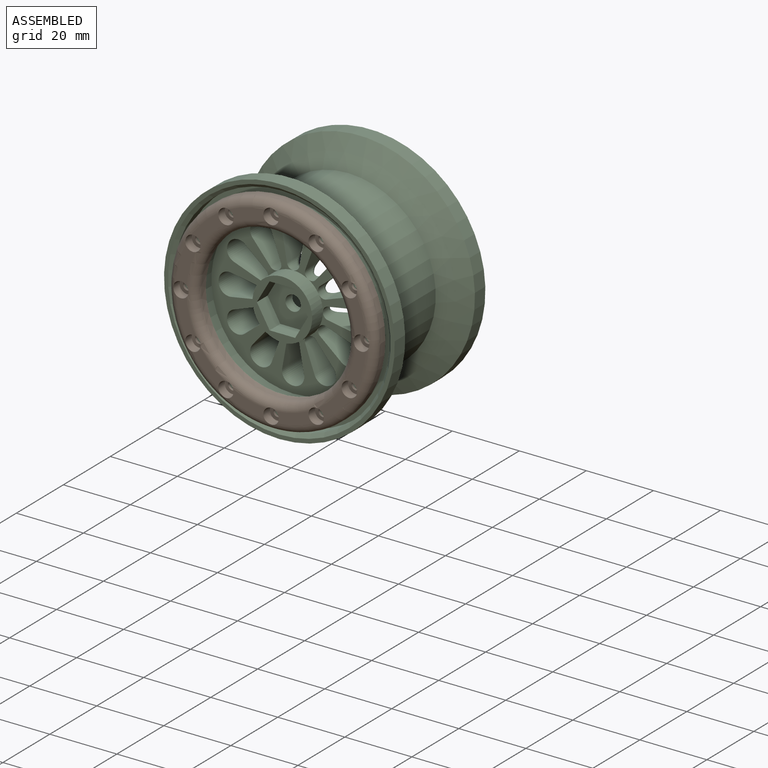
[diagram: assembled view]
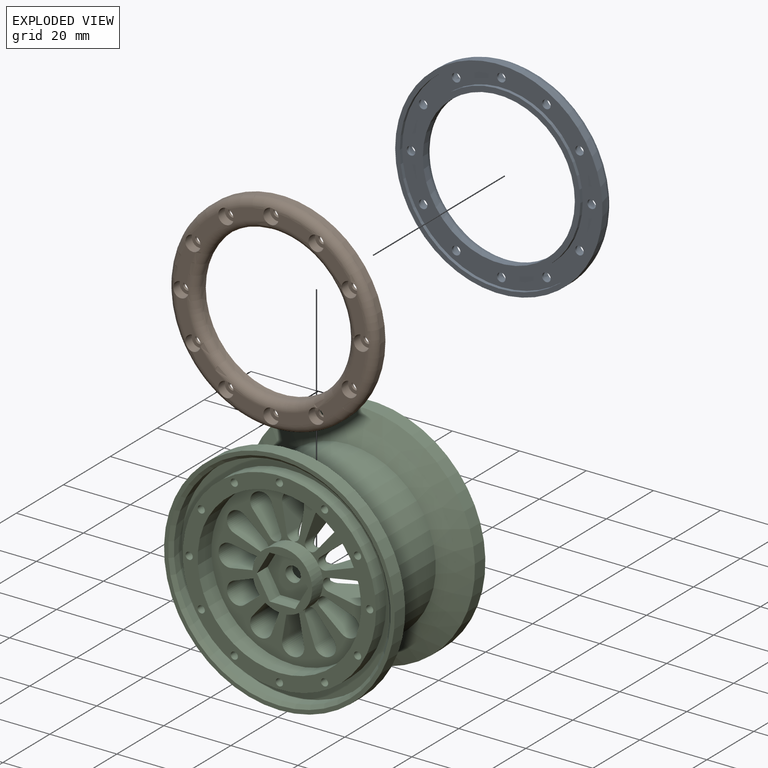
[diagram: exploded view]
GUIDED TOUR — MATED ASSEMBLY (Onshape document 4cdb00ff0a4b6b4df8838303, AutoMate assembly 4cdb00ff0a4b6b4df8838303_9c6cea772b66b6b0c217ccb2_10d780cee278beb6299b6385_default)

This assembly has 3 components, labeled P0..P2 below (a component is one placed occurrence of a part; the same part can appear more than once), held together by 6 mates. A mate is a constraint between two components; its type names the relative motion it leaves free:
  CYLINDRICAL — leaves both rotation about and translation along the listed axis free,
  PLANAR — leaves sliding in the plane through the listed point (normal = the listed direction) and rotation about that normal free.
Axis/direction vectors are unit vectors and 'through' points are millimeter coordinates, both in the assembly's world frame.

MATES
  1. CYLINDRICAL "Cylindrical 3": P0 <-> P2, axis (0.000, -1.000, 0.000) through (0.00, 19.30, 0.00) mm
  2. PLANAR "Planar 2": P0 <-> P2, direction (0.000, -1.000, 0.000) through (0.00, 19.30, 0.00) mm
  3. CYLINDRICAL "Cylindrical 1": P1 <-> P2, axis (0.000, 1.000, 0.000) through (0.00, -19.30, 0.00) mm
  4. CYLINDRICAL "Cylindrical 4": P0 <-> P2, axis (0.000, 1.000, 0.000) through (-13.46, 19.69, 23.32) mm
  5. CYLINDRICAL "Cylindrical 2": P1 <-> P2, axis (0.000, -1.000, 0.000) through (0.00, -19.69, 26.92) mm
  6. PLANAR "Planar 1": P1 <-> P2, direction (0.000, 1.000, 0.000) through (13.46, -19.30, -23.32) mm

ASSEMBLY ORDER
  1. P1 — the base component [order verified]
  2. P2 [order verified]
  3. P0 [order verified]
Order-tag legend:
  [order verified] — this step's position reverses a verified removal order: the component was checked to insert without passing through the ones already placed.

Of the 3 components, 0 carry the full construction recipe — the FeatureScript program that regenerates the part's solid from scratch; the rest are supplied as boundary geometry only.
Each toured component is shown spotlighted twice — in the assembled view, then in the exploded view, where a leader line traces a displaced component back to its assembled socket (saturated green if recipe-attached, orange if geometry-only; every other component desaturated gray) — followed by its recipe or geometry summary and the mates that hold it.
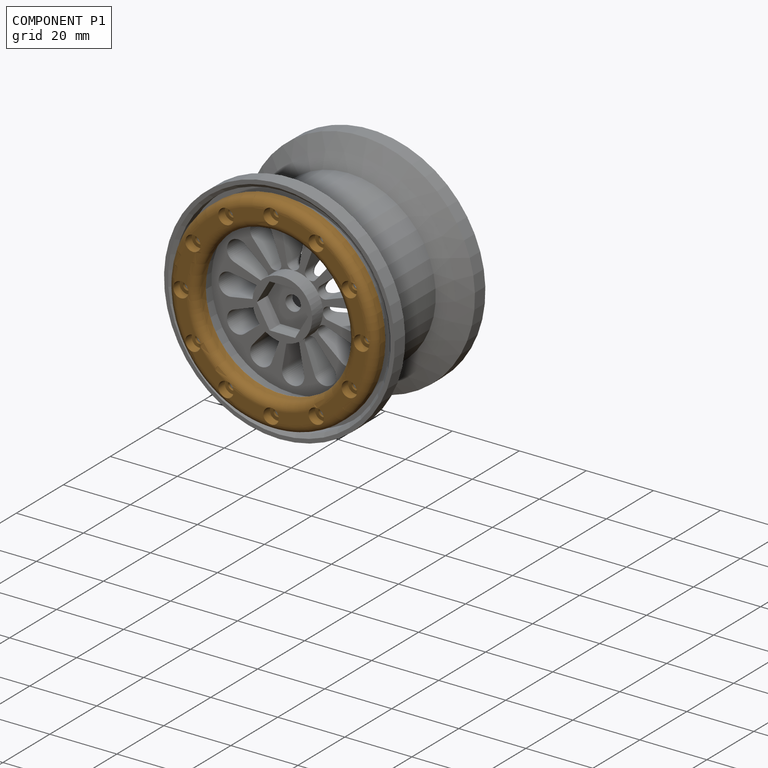
[diagram: component P1 — assembled]
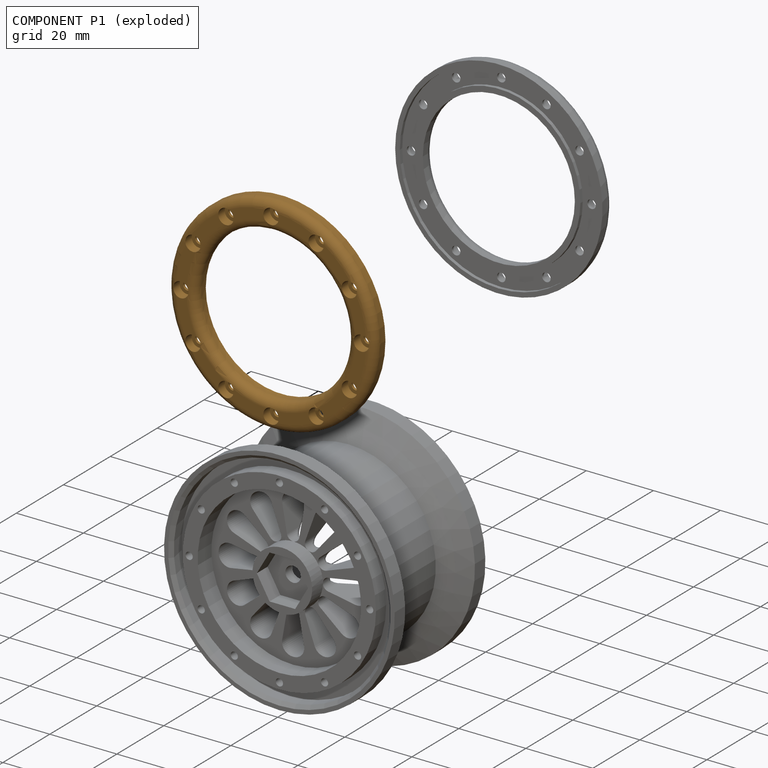
[diagram: component P1 — exploded]
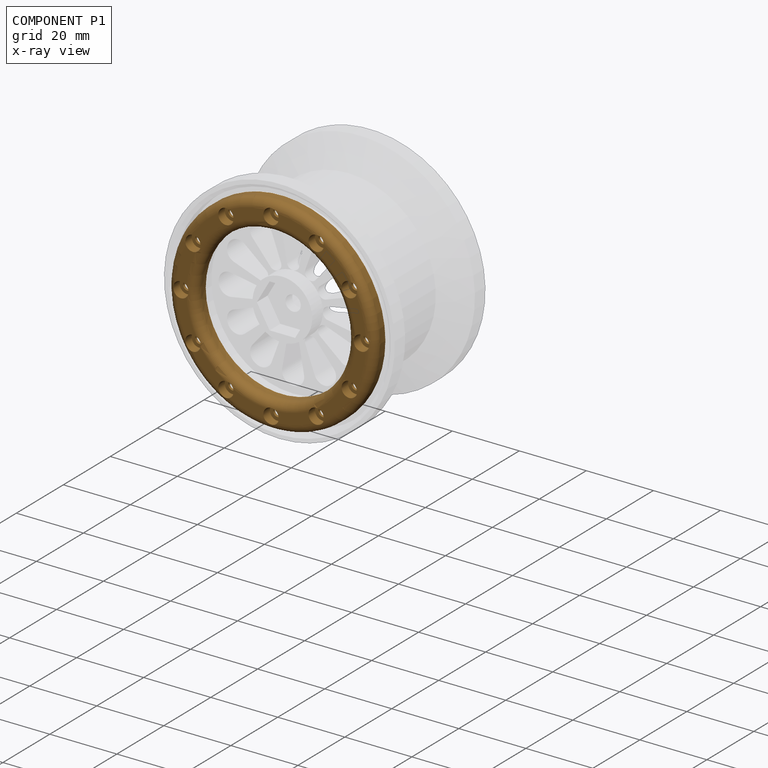
[diagram: component P1 — x-ray view]
COMPONENT P1 — geometry summary (no construction recipe available for this part):
  bounding box: 66.9 x 66.9 x 4.6 mm
  B-rep topology: 1 solid, 57 faces, 348 edges
  volume: 4398 mm^3 (21% of its bounding box)
  symmetry: 6-fold rotationally symmetric about the y axis; mirror-symmetric across its x mid-plane, z mid-plane
Held by: CYLINDRICAL mate "Cylindrical 1" to P2; CYLINDRICAL mate "Cylindrical 2" to P2; PLANAR mate "Planar 1" to P2.
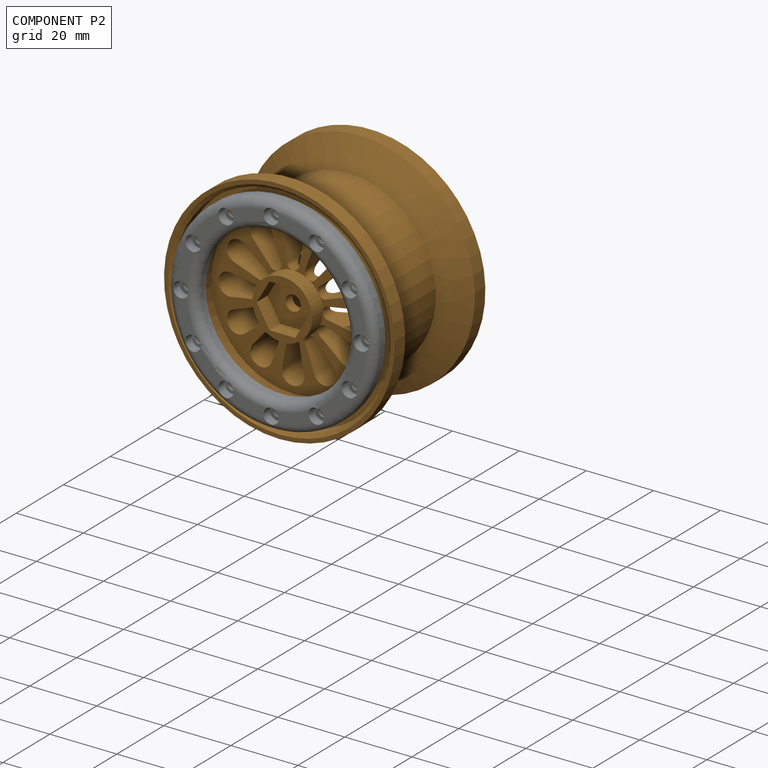
[diagram: component P2 — assembled]
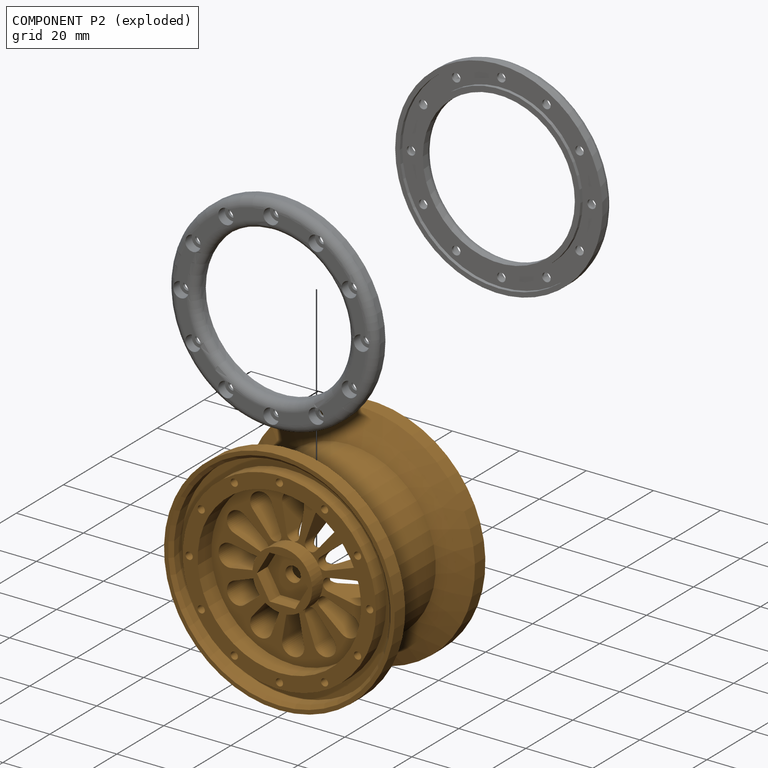
[diagram: component P2 — exploded]
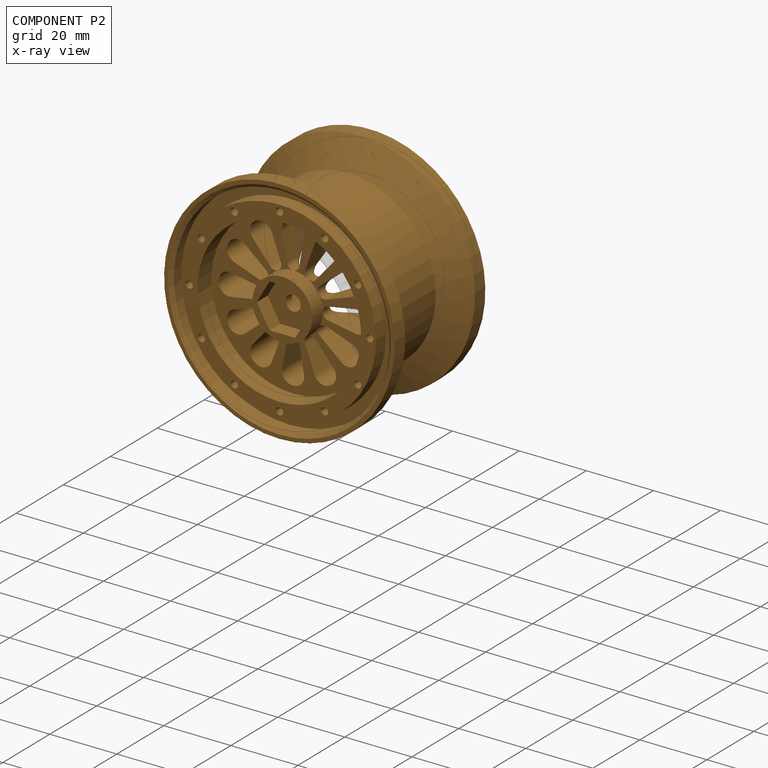
[diagram: component P2 — x-ray view]
COMPONENT P2 — geometry summary (no construction recipe available for this part):
  bounding box: 68.8 x 68.8 x 38.6 mm
  B-rep topology: 1 solid, 333 faces, 1618 edges
  volume: 39793 mm^3 (22% of its bounding box)
  symmetry: 6-fold rotationally symmetric about the y axis; mirror-symmetric across its x mid-plane, z mid-plane
Held by: CYLINDRICAL mate "Cylindrical 3" to P0; PLANAR mate "Planar 2" to P0; CYLINDRICAL mate "Cylindrical 1" to P1; CYLINDRICAL mate "Cylindrical 4" to P0; CYLINDRICAL mate "Cylindrical 2" to P1; PLANAR mate "Planar 1" to P1.
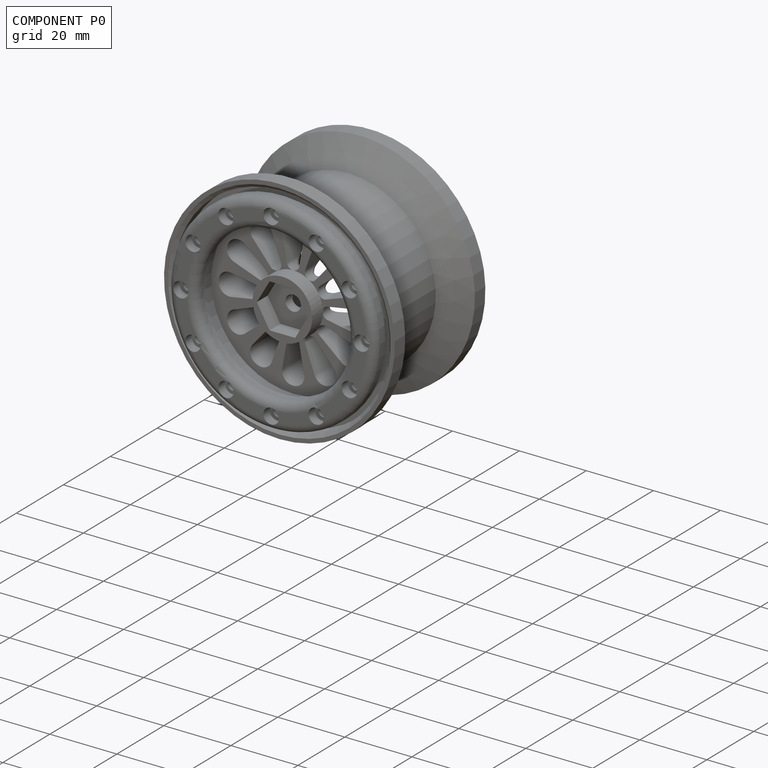
[diagram: component P0 — assembled]
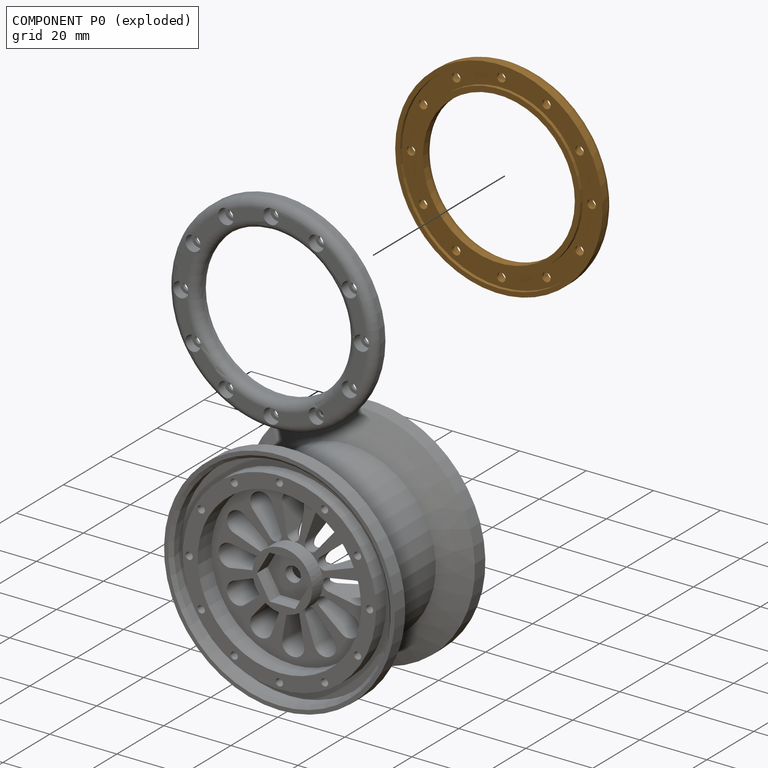
[diagram: component P0 — exploded]
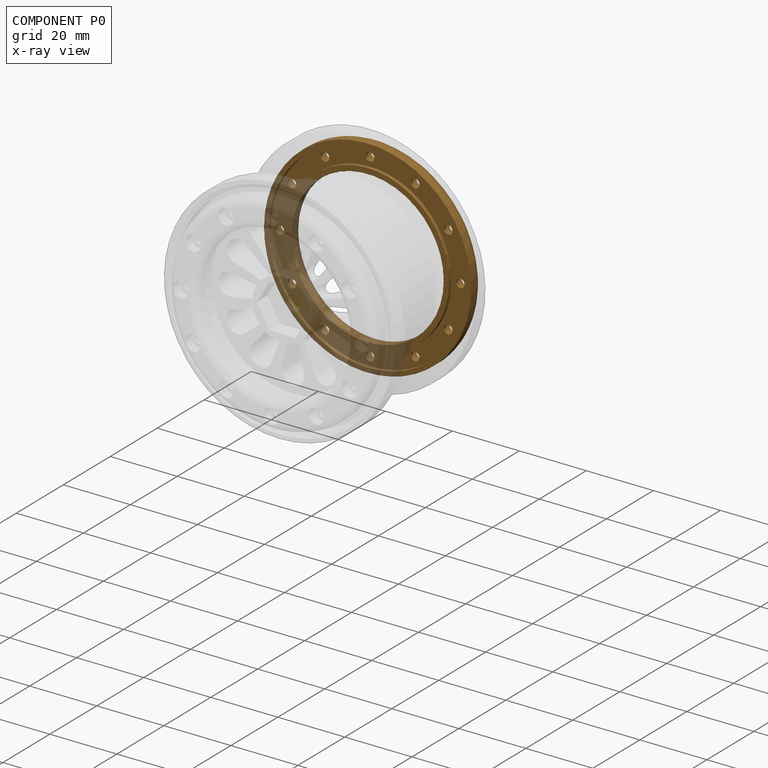
[diagram: component P0 — x-ray view]
COMPONENT P0 — geometry summary (no construction recipe available for this part):
  bounding box: 66.9 x 66.9 x 4.6 mm
  B-rep topology: 1 solid, 57 faces, 348 edges
  volume: 4398 mm^3 (21% of its bounding box)
  symmetry: 6-fold rotationally symmetric about the y axis; mirror-symmetric across its x mid-plane, z mid-plane
Held by: CYLINDRICAL mate "Cylindrical 3" to P2; PLANAR mate "Planar 2" to P2; CYLINDRICAL mate "Cylindrical 4" to P2.
PROVENANCE & LICENSES
Assembly (occurrences, transforms, mates, per-part STEP geometry): AutoMate dataset, Zenodo record 7776208, CC0.
Construction recipes: CADFS (HuggingFace VladPyatov/CADFS, CC-BY-4.0, layered over the ABC dataset), FeatureScript reconstruction programs keyed by ABC model id.
Join: ABC meta listings map ABC model id -> Onshape documentId; within a shared document, parts are matched by geometric signature (bounding-box dims + volume at 0.1% relative tolerance, exact B-rep face/solid counts).
Verification: no recipe attachments in this assembly (3 components, all geometry-only).
Renders: orthographic iso camera (az 35 / el 25); the floor grid conveys scale (grid pitch printed in each image; no ruler). In the exploded view each component is displaced by its stored offset vector: the offsets alone carry the explosion direction (mate normal/axis signs are not orientation cues and do not encode it), and separation distances are assigned per mate-chain, not proportionally to assembly-order depth.
